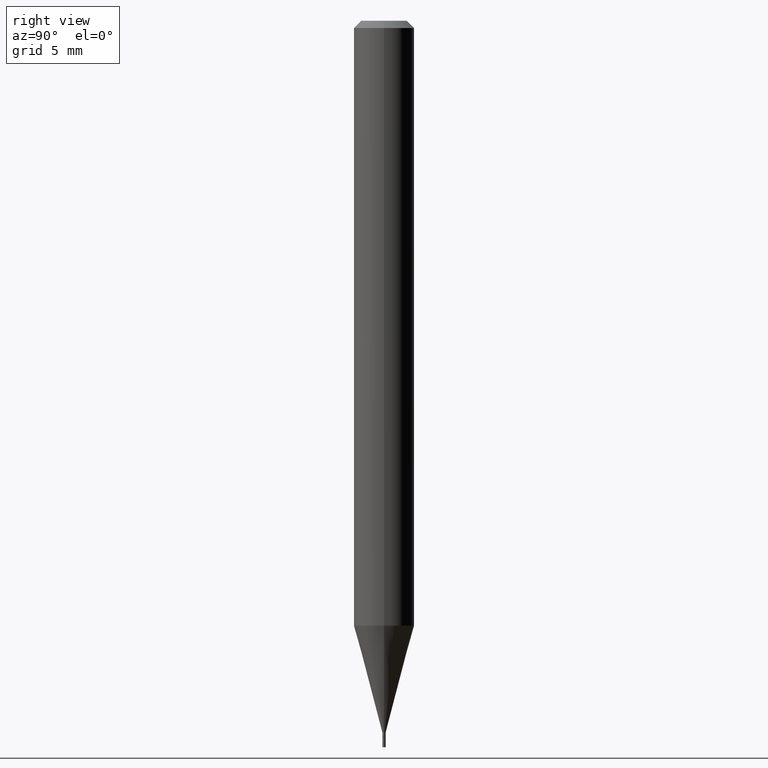
[diagram: clean part render]
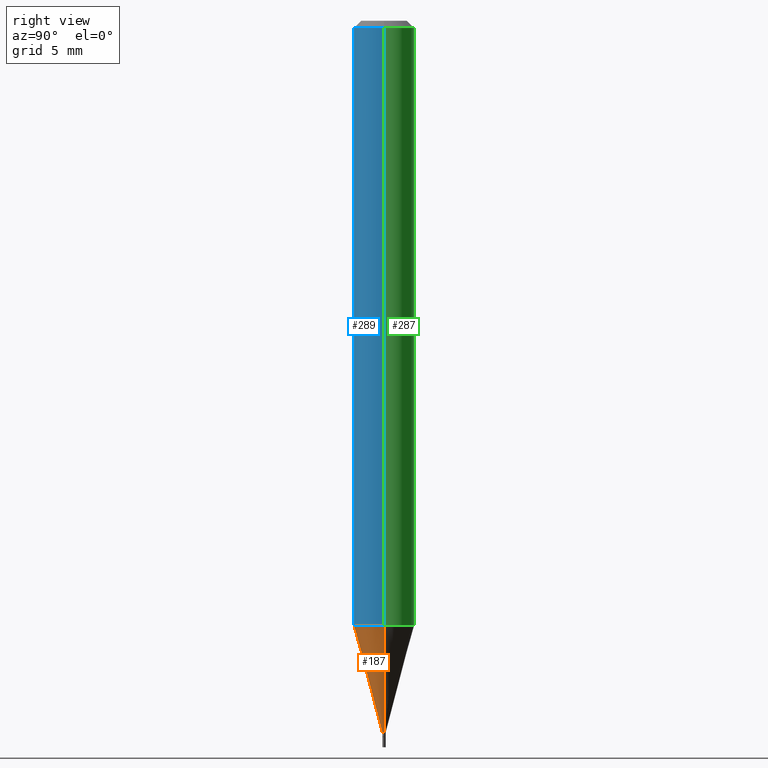
[diagram: same view with three faces highlighted in distinct colors, each labeled with its STEP entity id]
A machine part, right view with three faces highlighted in distinct colors.
Their STEP definitions:

[orange] entity #187 — the highlighted conical surface has half-angle 15 deg.
#1 = AXIS2_PLACEMENT_3D ( 'NONE', #181, #452, #139 ) ;
#4 = ORIENTED_EDGE ( 'NONE', *, *, #324, .T. ) ;
#36 = DIRECTION ( 'NONE',  ( -0.2588190451025213501, 5.211531920934551042E-15, 0.9659258262890682012 ) ) ;
#51 = CARTESIAN_POINT ( 'NONE',  ( 0.06250000000000001388, -4.796628494851741757E-15, -1.248809002353436615 ) ) ;
#56 = VECTOR ( 'NONE', #36, 39.37007874015747433 ) ;
#71 = LINE ( 'NONE', #212, #229 ) ;
#84 = EDGE_CURVE ( 'NONE', #238, #201, #367, .T. ) ;
#100 = CIRCLE ( 'NONE', #1, 0.003499999999999922010 ) ;
#121 = DIRECTION ( 'NONE',  ( 1.000000000000000000, -6.982962677686270655E-15, 0.000000000000000000 ) ) ;
#132 = AXIS2_PLACEMENT_3D ( 'NONE', #263, #262, #344 ) ;
#139 = DIRECTION ( 'NONE',  ( 1.000000000000000000, -6.982962677686349541E-15, 0.000000000000000000 ) ) ;
#141 = CARTESIAN_POINT ( 'NONE',  ( -0.06250000000000001388, -3.916104117646285894E-15, -1.248809002353436615 ) ) ;
#152 = EDGE_LOOP ( 'NONE', ( #369, #314, #4, #373 ) ) ;
#181 = CARTESIAN_POINT ( 'NONE',  ( 3.592393676285966338E-29, -5.128986086760581011E-15, -1.469000000000000083 ) ) ;
#187 = ADVANCED_FACE ( 'NONE', ( #375 ), #342, .T. ) ;
#201 = VERTEX_POINT ( 'NONE', #51 ) ;
#208 = VERTEX_POINT ( 'NONE', #328 ) ;
#212 = CARTESIAN_POINT ( 'NONE',  ( 0.003499999999999922010, -5.153426456132482850E-15, -1.469000000000000083 ) ) ;
#220 = LINE ( 'NONE', #329, #56 ) ;
#229 = VECTOR ( 'NONE', #318, 39.37007874015747433 ) ;
#238 = VERTEX_POINT ( 'NONE', #141 ) ;
#262 = DIRECTION ( 'NONE',  ( -2.445468806185136597E-29, 3.491481338843145583E-15, 1.000000000000000000 ) ) ;
#263 = CARTESIAN_POINT ( 'NONE',  ( 3.592393676285966338E-29, -5.128986086760581011E-15, -1.469000000000000083 ) ) ;
#283 = CARTESIAN_POINT ( 'NONE',  ( 0.003499999999999922010, -5.153426456132482850E-15, -1.469000000000000083 ) ) ;
#305 = VERTEX_POINT ( 'NONE', #283 ) ;
#314 = ORIENTED_EDGE ( 'NONE', *, *, #340, .T. ) ;
#318 = DIRECTION ( 'NONE',  ( 0.2588190451025213501, 1.565188264969621968E-15, 0.9659258262890682012 ) ) ;
#324 = EDGE_CURVE ( 'NONE', #305, #201, #71, .T. ) ;
#328 = CARTESIAN_POINT ( 'NONE',  ( -0.003499999999999922010, -4.510110604327631885E-15, -1.469000000000000083 ) ) ;
#329 = CARTESIAN_POINT ( 'NONE',  ( -0.003499999999999922010, -5.104117091008977877E-15, -1.469000000000000083 ) ) ;
#340 = EDGE_CURVE ( 'NONE', #208, #305, #100, .T. ) ;
#342 = CONICAL_SURFACE ( 'NONE', #132, 0.003499999999999922010, 0.2617993877991500740 ) ;
#344 = DIRECTION ( 'NONE',  ( 1.000000000000000000, -6.982962677686349541E-15, 0.000000000000000000 ) ) ;
#367 = CIRCLE ( 'NONE', #388, 0.06250000000000000000 ) ;
#369 = ORIENTED_EDGE ( 'NONE', *, *, #374, .F. ) ;
#373 = ORIENTED_EDGE ( 'NONE', *, *, #84, .F. ) ;
#374 = EDGE_CURVE ( 'NONE', #208, #238, #220, .T. ) ;
#375 = FACE_OUTER_BOUND ( 'NONE', #152, .T. ) ;
#388 = AXIS2_PLACEMENT_3D ( 'NONE', #426, #403, #121 ) ;
#403 = DIRECTION ( 'NONE',  ( -2.445468806185136597E-29, 3.491481338843145583E-15, 1.000000000000000000 ) ) ;
#426 = CARTESIAN_POINT ( 'NONE',  ( 3.053923460138509831E-29, -4.360193327496349299E-15, -1.248809002353436615 ) ) ;
#452 = DIRECTION ( 'NONE',  ( -2.445468806185136597E-29, 3.491481338843145583E-15, 1.000000000000000000 ) ) ;

[blue] entity #289 — the highlighted cylindrical surface (edge-blend (fillet) strip) has radius 1.5875 mm, axis along (-0, 0, 1).
#14 = EDGE_CURVE ( 'NONE', #201, #90, #451, .T. ) ;
#51 = CARTESIAN_POINT ( 'NONE',  ( 0.06250000000000001388, -4.796628494851741757E-15, -1.248809002353436615 ) ) ;
#61 = ORIENTED_EDGE ( 'NONE', *, *, #84, .T. ) ;
#72 = AXIS2_PLACEMENT_3D ( 'NONE', #358, #284, #105 ) ;
#73 = FACE_OUTER_BOUND ( 'NONE', #120, .T. ) ;
#84 = EDGE_CURVE ( 'NONE', #238, #201, #367, .T. ) ;
#90 = VERTEX_POINT ( 'NONE', #224 ) ;
#105 = DIRECTION ( 'NONE',  ( 1.000000000000000000, -6.982962677686266711E-15, 4.876176775795935793E-29 ) ) ;
#120 = EDGE_LOOP ( 'NONE', ( #354, #61, #404, #244 ) ) ;
#121 = DIRECTION ( 'NONE',  ( 1.000000000000000000, -6.982962677686270655E-15, 0.000000000000000000 ) ) ;
#131 = CARTESIAN_POINT ( 'NONE',  ( 0.06250000000000000000, -4.364351673553916694E-16, 3.047610484872459871E-30 ) ) ;
#141 = CARTESIAN_POINT ( 'NONE',  ( -0.06250000000000001388, -3.916104117646285894E-15, -1.248809002353436615 ) ) ;
#159 = CARTESIAN_POINT ( 'NONE',  ( -0.06250000000000000000, -1.762193563939435770E-15, -0.01499999999999999944 ) ) ;
#173 = AXIS2_PLACEMENT_3D ( 'NONE', #430, #183, #266 ) ;
#183 = DIRECTION ( 'NONE',  ( -2.445468806185136597E-29, 3.491481338843145583E-15, 1.000000000000000000 ) ) ;
#200 = VERTEX_POINT ( 'NONE', #159 ) ;
#201 = VERTEX_POINT ( 'NONE', #51 ) ;
#214 = CYLINDRICAL_SURFACE ( 'NONE', #72, 0.06250000000000000000 ) ;
#216 = LINE ( 'NONE', #253, #359 ) ;
#224 = CARTESIAN_POINT ( 'NONE',  ( 0.06250000000000000000, -4.888073874380388472E-16, -0.01499999999999999944 ) ) ;
#238 = VERTEX_POINT ( 'NONE', #141 ) ;
#244 = ORIENTED_EDGE ( 'NONE', *, *, #386, .F. ) ;
#253 = CARTESIAN_POINT ( 'NONE',  ( -0.06250000000000000000, 4.440892098500626162E-16, -3.074334431409316114E-30 ) ) ;
#266 = DIRECTION ( 'NONE',  ( 1.000000000000000000, -6.982962677686266711E-15, 0.000000000000000000 ) ) ;
#284 = DIRECTION ( 'NONE',  ( -2.445468806185136597E-29, 3.491481338843145583E-15, 1.000000000000000000 ) ) ;
#289 = ADVANCED_FACE ( 'NONE', ( #73 ), #214, .T. ) ;
#311 = VECTOR ( 'NONE', #405, 39.37007874015748143 ) ;
#319 = EDGE_CURVE ( 'NONE', #238, #200, #216, .T. ) ;
#354 = ORIENTED_EDGE ( 'NONE', *, *, #319, .F. ) ;
#358 = CARTESIAN_POINT ( 'NONE',  ( 0.000000000000000000, 0.000000000000000000, 0.000000000000000000 ) ) ;
#359 = VECTOR ( 'NONE', #361, 39.37007874015748143 ) ;
#361 = DIRECTION ( 'NONE',  ( -2.445468806185136877E-29, 3.491481338843145188E-15, 1.000000000000000000 ) ) ;
#363 = CIRCLE ( 'NONE', #173, 0.06250000000000000000 ) ;
#367 = CIRCLE ( 'NONE', #388, 0.06250000000000000000 ) ;
#386 = EDGE_CURVE ( 'NONE', #200, #90, #363, .T. ) ;
#388 = AXIS2_PLACEMENT_3D ( 'NONE', #426, #403, #121 ) ;
#403 = DIRECTION ( 'NONE',  ( -2.445468806185136597E-29, 3.491481338843145583E-15, 1.000000000000000000 ) ) ;
#404 = ORIENTED_EDGE ( 'NONE', *, *, #14, .T. ) ;
#405 = DIRECTION ( 'NONE',  ( -2.445468806185136877E-29, 3.491481338843145188E-15, 1.000000000000000000 ) ) ;
#426 = CARTESIAN_POINT ( 'NONE',  ( 3.053923460138509831E-29, -4.360193327496349299E-15, -1.248809002353436615 ) ) ;
#430 = CARTESIAN_POINT ( 'NONE',  ( 3.668203209277705088E-31, -5.237222008264718399E-17, -0.01499999999999999944 ) ) ;
#451 = LINE ( 'NONE', #131, #311 ) ;

[green] entity #287 — the highlighted cylindrical surface (edge-blend (fillet) strip) has radius 1.5875 mm, axis along (-0, 0, 1).
#5 = CARTESIAN_POINT ( 'NONE',  ( 3.053923460138509831E-29, -4.360193327496349299E-15, -1.248809002353436615 ) ) ;
#14 = EDGE_CURVE ( 'NONE', #201, #90, #451, .T. ) ;
#40 = AXIS2_PLACEMENT_3D ( 'NONE', #323, #458, #387 ) ;
#51 = CARTESIAN_POINT ( 'NONE',  ( 0.06250000000000001388, -4.796628494851741757E-15, -1.248809002353436615 ) ) ;
#59 = FACE_OUTER_BOUND ( 'NONE', #232, .T. ) ;
#79 = CIRCLE ( 'NONE', #395, 0.06250000000000000000 ) ;
#90 = VERTEX_POINT ( 'NONE', #224 ) ;
#109 = CIRCLE ( 'NONE', #334, 0.06250000000000000000 ) ;
#112 = ORIENTED_EDGE ( 'NONE', *, *, #135, .T. ) ;
#131 = CARTESIAN_POINT ( 'NONE',  ( 0.06250000000000000000, -4.364351673553916694E-16, 3.047610484872459871E-30 ) ) ;
#135 = EDGE_CURVE ( 'NONE', #201, #238, #109, .T. ) ;
#141 = CARTESIAN_POINT ( 'NONE',  ( -0.06250000000000001388, -3.916104117646285894E-15, -1.248809002353436615 ) ) ;
#159 = CARTESIAN_POINT ( 'NONE',  ( -0.06250000000000000000, -1.762193563939435770E-15, -0.01499999999999999944 ) ) ;
#172 = CYLINDRICAL_SURFACE ( 'NONE', #40, 0.06250000000000000000 ) ;
#200 = VERTEX_POINT ( 'NONE', #159 ) ;
#201 = VERTEX_POINT ( 'NONE', #51 ) ;
#202 = EDGE_CURVE ( 'NONE', #90, #200, #79, .T. ) ;
#216 = LINE ( 'NONE', #253, #359 ) ;
#218 = DIRECTION ( 'NONE',  ( 1.000000000000000000, -6.982962677686266711E-15, 0.000000000000000000 ) ) ;
#224 = CARTESIAN_POINT ( 'NONE',  ( 0.06250000000000000000, -4.888073874380388472E-16, -0.01499999999999999944 ) ) ;
#232 = EDGE_LOOP ( 'NONE', ( #112, #379, #449, #348 ) ) ;
#238 = VERTEX_POINT ( 'NONE', #141 ) ;
#253 = CARTESIAN_POINT ( 'NONE',  ( -0.06250000000000000000, 4.440892098500626162E-16, -3.074334431409316114E-30 ) ) ;
#268 = DIRECTION ( 'NONE',  ( 1.000000000000000000, -6.982962677686270655E-15, 0.000000000000000000 ) ) ;
#287 = ADVANCED_FACE ( 'NONE', ( #59 ), #172, .T. ) ;
#306 = CARTESIAN_POINT ( 'NONE',  ( 3.668203209277705088E-31, -5.237222008264718399E-17, -0.01499999999999999944 ) ) ;
#311 = VECTOR ( 'NONE', #405, 39.37007874015748143 ) ;
#319 = EDGE_CURVE ( 'NONE', #238, #200, #216, .T. ) ;
#323 = CARTESIAN_POINT ( 'NONE',  ( 0.000000000000000000, 0.000000000000000000, 0.000000000000000000 ) ) ;
#334 = AXIS2_PLACEMENT_3D ( 'NONE', #5, #408, #268 ) ;
#348 = ORIENTED_EDGE ( 'NONE', *, *, #14, .F. ) ;
#359 = VECTOR ( 'NONE', #361, 39.37007874015748143 ) ;
#361 = DIRECTION ( 'NONE',  ( -2.445468806185136877E-29, 3.491481338843145188E-15, 1.000000000000000000 ) ) ;
#379 = ORIENTED_EDGE ( 'NONE', *, *, #319, .T. ) ;
#387 = DIRECTION ( 'NONE',  ( 1.000000000000000000, -6.982962677686266711E-15, 4.876176775795935793E-29 ) ) ;
#395 = AXIS2_PLACEMENT_3D ( 'NONE', #306, #441, #218 ) ;
#405 = DIRECTION ( 'NONE',  ( -2.445468806185136877E-29, 3.491481338843145188E-15, 1.000000000000000000 ) ) ;
#408 = DIRECTION ( 'NONE',  ( -2.445468806185136597E-29, 3.491481338843145583E-15, 1.000000000000000000 ) ) ;
#441 = DIRECTION ( 'NONE',  ( -2.445468806185136597E-29, 3.491481338843145583E-15, 1.000000000000000000 ) ) ;
#449 = ORIENTED_EDGE ( 'NONE', *, *, #202, .F. ) ;
#451 = LINE ( 'NONE', #131, #311 ) ;
#458 = DIRECTION ( 'NONE',  ( -2.445468806185136597E-29, 3.491481338843145583E-15, 1.000000000000000000 ) ) ;